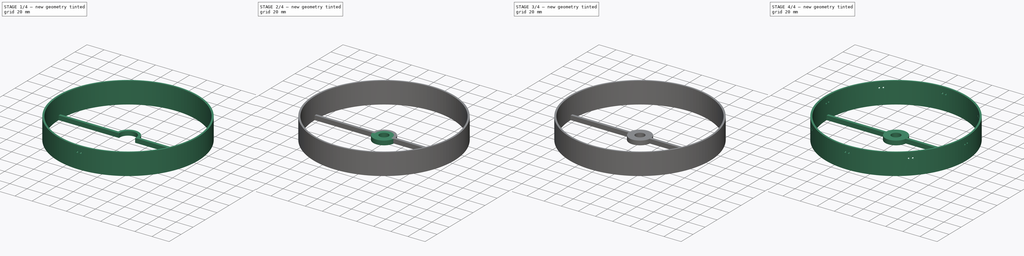
[diagram: build sequence overview — one tinted view per stage of 4, left to right]
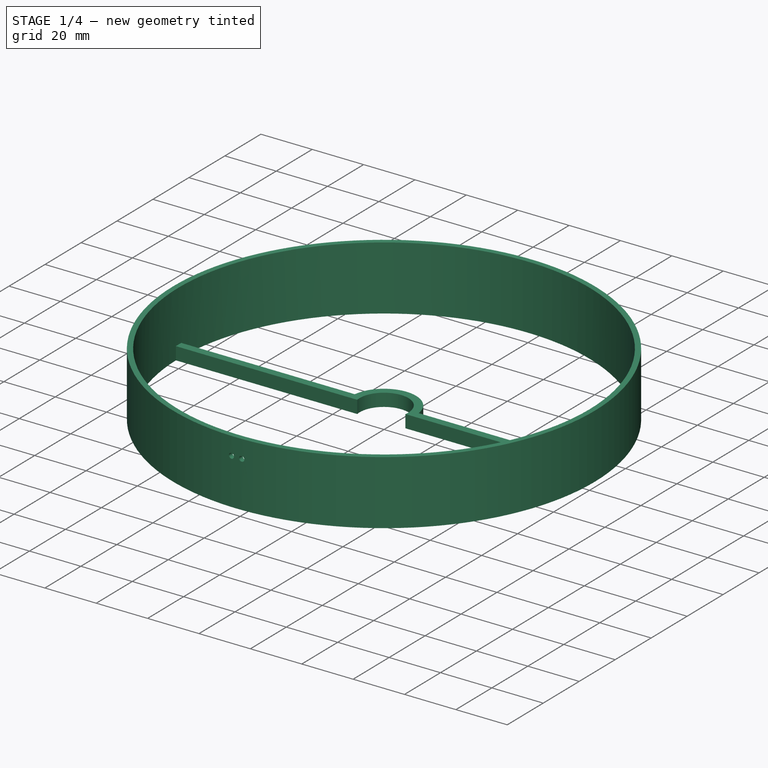
[diagram: stage 1 of 4 — iso view after this stage's code; geometry added in this stage tinted green]
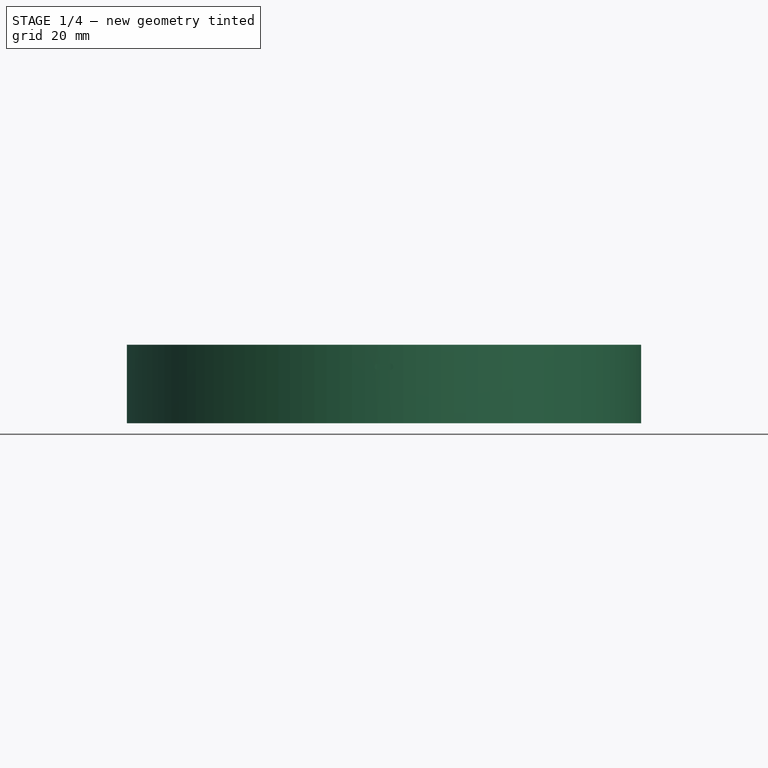
[diagram: stage 1 of 4 — front view after this stage's code; geometry added in this stage tinted green]
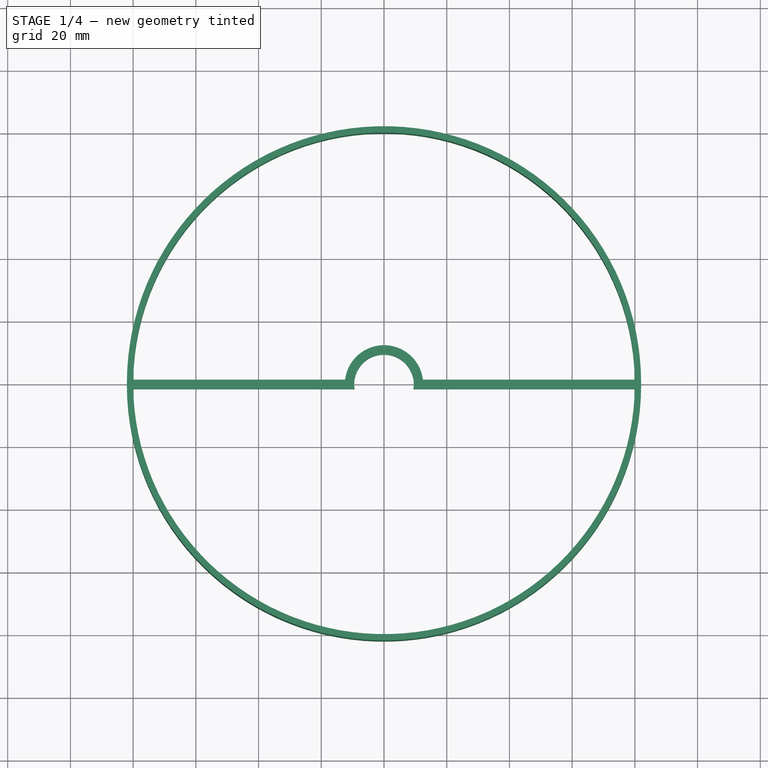
[diagram: stage 1 of 4 — top view after this stage's code; geometry added in this stage tinted green]
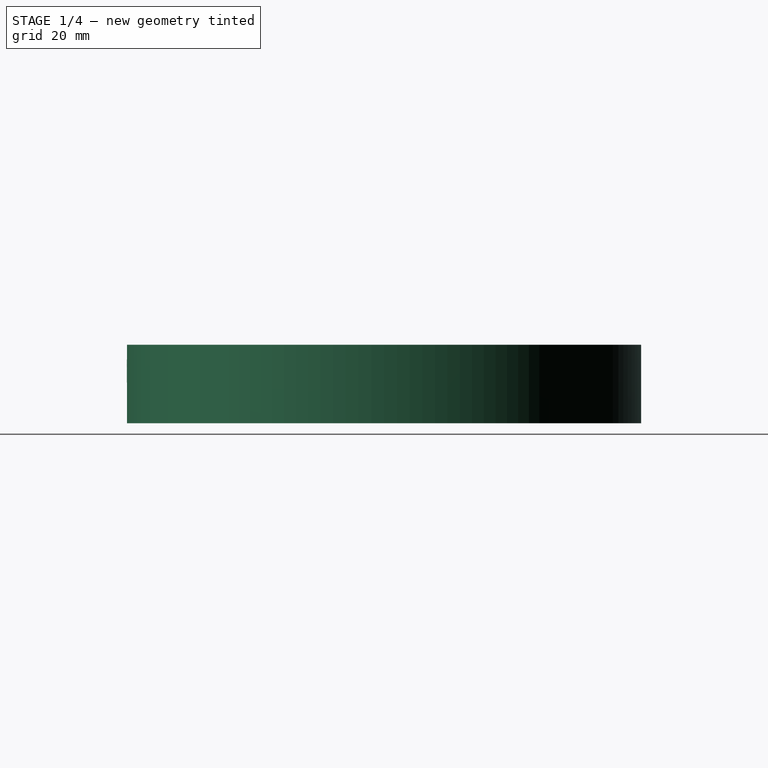
[diagram: stage 1 of 4 — right view after this stage's code; geometry added in this stage tinted green]
FCSTD DOCUMENT  (FreeCAD 0.19R22756 (Git))
Label: ikea-light-cover
License: All rights reserved
LicenseURL: http://en.wikipedia.org/wiki/All_rights_reserved
objects: Sketcher::SketchObject×10, PartDesign::Pad×7, PartDesign::Pocket×3, PartDesign::Body×3, PartDesign::Plane×2, PartDesign::PolarPattern×2
note: 37 computed .brp shape members not serialized (recipe doc carries the construction recipe); baked Part::Feature solids carry a one-line shape summary decoded from their .brp

FEATURE [PartDesign::Body] Body002  label="Middle"
  Group = -> [Sketch004,Pad003,Sketch003,Pad002,Sketch005,Pocket001]
  Origin = -> Origin002
  Tip = -> Pocket001
FEATURE [Sketcher::SketchObject] Sketch008
  MapMode = 5
  Support = -> [XY_Plane003]
  expr: Constraints[3] = Constraints[2] + 4mm
  sketch-geometry (2):
    g0: Circle CenterX=0 CenterY=0 CenterZ=0 NormalX=0 NormalY=0 NormalZ=1 AngleXU=0 Radius=82
    g1: Circle CenterX=0 CenterY=0 CenterZ=0 NormalX=0 NormalY=0 NormalZ=1 AngleXU=0 Radius=80
  constraints (4):
    c: Coincident(g0,g-1)
    c: Coincident(g1,g0)
    c: Diameter(g1) = 160
    c: Diameter(g0) = 164
FEATURE [PartDesign::Plane] DatumPlane001
  AttachmentOffset = pos=(0,0,82) rot=(0,0,1;0rad)
  Length = 182.105
  MapMode = 5
  Placement = pos=(0,-82,-1.82e-14) rot=(1,0,0;1.5708rad)
  ResizeMode = 0
  Support = -> [XZ_Plane003]
  Width = 68.1104
FEATURE [Sketcher::SketchObject] Sketch007
  MapMode = 5
  Placement = pos=(0,-82,-1.82e-14) rot=(1,0,0;1.5708rad)
  Support = -> [DatumPlane001]
  expr: Constraints[4] = -Constraints[3]
  sketch-geometry (2):
    g0: Circle CenterX=-2 CenterY=18 CenterZ=0 NormalX=0 NormalY=0 NormalZ=1 AngleXU=0 Radius=1
    g1: Circle CenterX=2 CenterY=18 CenterZ=0 NormalX=0 NormalY=0 NormalZ=1 AngleXU=0 Radius=1
  constraints (6):
    c: Diameter(g0) = 2
    c: Diameter(g1) = 2
    c: Horizontal(g0,g1)
    c: DistanceX(g-2,g0) = -2
    c: DistanceX(g-2,g1) = 2
    c: DistanceY(g-1,g0) = 18
FEATURE [PartDesign::Pad] Pad004
  Direction = (1,1,1)
  Length = 25
  Length2 = 100
  Profile = -> Sketch008
  Type = 0
FEATURE [Sketcher::SketchObject] Sketch006
  ExternalGeometry = -> [Pad004]
  MapMode = 5
  Placement = pos=(0,0,0) rot=(1,0,0;3.14159rad)
  Support = -> [Pad004]
  expr: Constraints[21] = Constraints[19] / 2
  expr: Constraints[20] = Constraints[1] - 6mm
  sketch-geometry (8):
    g0: ArcOfCircle CenterX=0 CenterY=0 CenterZ=0 NormalX=0 NormalY=0 NormalZ=1 AngleXU=0 Radius=12.5 StartAngle=3.26188 EndAngle=6.1629
    g1: LineSegment StartX=-12.4097 StartY=-1.5 StartZ=0 EndX=-79.9859 EndY=-1.5 EndZ=0
    g2: LineSegment StartX=12.4097 StartY=-1.5 StartZ=0 EndX=79.9859 EndY=-1.5 EndZ=0
    g3: ArcOfCircle CenterX=0 CenterY=0 CenterZ=0 NormalX=0 NormalY=0 NormalZ=1 AngleXU=0 Radius=9.5 StartAngle=2.98303 EndAngle=6.44174
    g4: LineSegment StartX=-79.9859 StartY=1.5 StartZ=0 EndX=-9.38083 EndY=1.5 EndZ=0
    g5: LineSegment StartX=9.38083 StartY=1.5 StartZ=0 EndX=79.9859 EndY=1.5 EndZ=0
    g6: ArcOfCircle CenterX=-1.98868e-11 CenterY=-6.31e-14 CenterZ=0 NormalX=0 NormalY=0 NormalZ=1 AngleXU=0 Radius=80 StartAngle=3.12284 EndAngle=3.16034
    g7: ArcOfCircle CenterX=2.82826e-11 CenterY=7.8e-15 CenterZ=0 NormalX=0 NormalY=0 NormalZ=1 AngleXU=0 Radius=80 StartAngle=6.26443 EndAngle=6.30194
  constraints (26):
    c: Coincident(g0,g-1)
    c: Diameter(g0) = 25
    c: Horizontal(g0,g0)
    c: Coincident(g1,g0)
    c: PointOnObject(g1,g-3)
    c: Horizontal(g1)
    c: Coincident(g2,g0)
    c: PointOnObject(g2,g-3)
    c: Horizontal(g2)
    c: Coincident(g3,g0)
    c: Horizontal(g3,g3)
    c: Coincident(g4,g3)
    c: Horizontal(g4)
    c: Coincident(g5,g3)
    c: PointOnObject(g5,g-3)
    c: Horizontal(g5)
    c: PointOnObject(g4,g-3)
    c: Coincident(g6,g4)
    c: Coincident(g6,g1)
    c: DistanceY(g1,g4) = 3
    c: Diameter(g3) = 19
    c: DistanceY(g-1,g4) = 1.5
    c: Tangent(g6,g-3)
    c: Coincident(g7,g5)
    c: Coincident(g7,g2)
    c: Tangent(g7,g-3)
FEATURE [PartDesign::Pad] Pad005
  BaseFeature = -> Pad004
  Direction = (1,1,1)
  Length = 5
  Length2 = 100
  Profile = -> Sketch006
  Reversed = true
  Type = 0
FEATURE [PartDesign::Pocket] Pocket002
  BaseFeature = -> Pad005
  Length = 5
  Length2 = 100
  Profile = -> Sketch007
  Type = 0
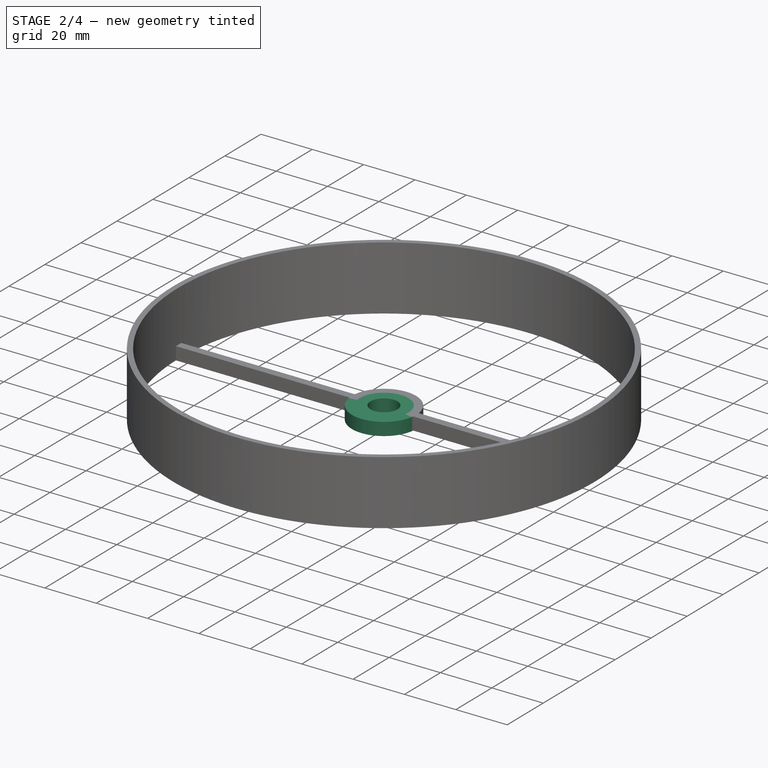
[diagram: stage 2 of 4 — iso view after this stage's code; geometry added in this stage tinted green]
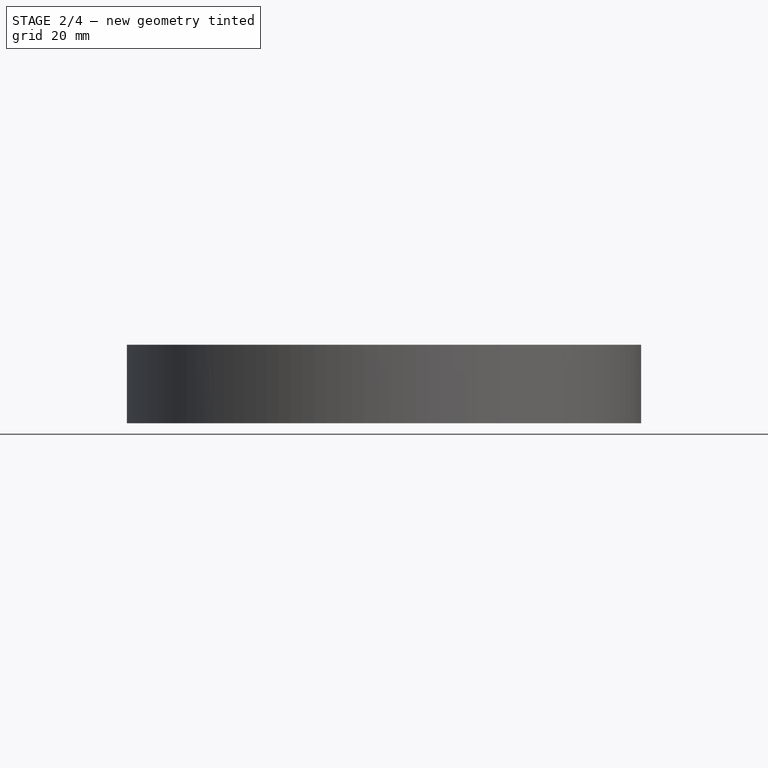
[diagram: stage 2 of 4 — front view after this stage's code; geometry added in this stage tinted green]
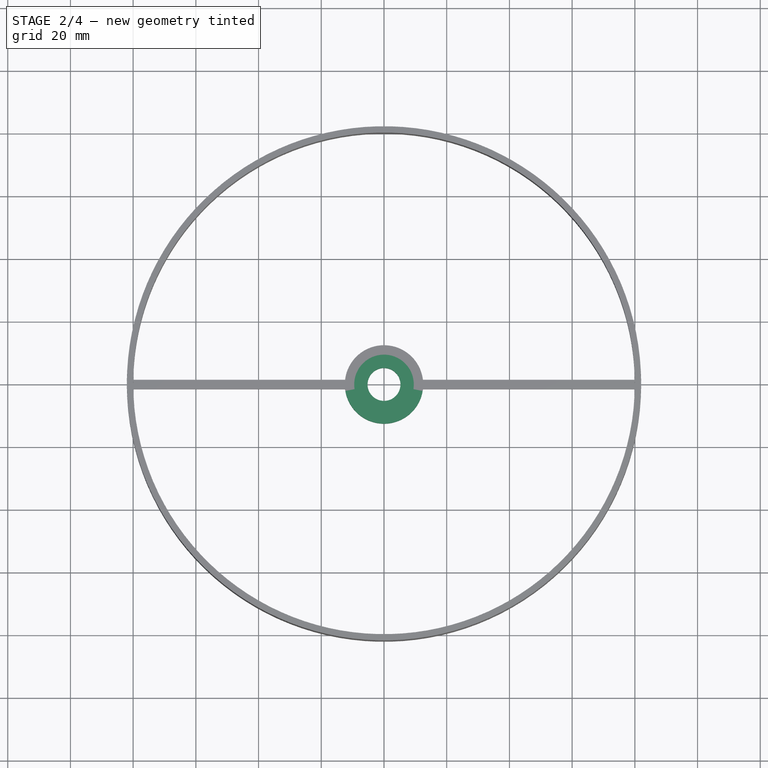
[diagram: stage 2 of 4 — top view after this stage's code; geometry added in this stage tinted green]
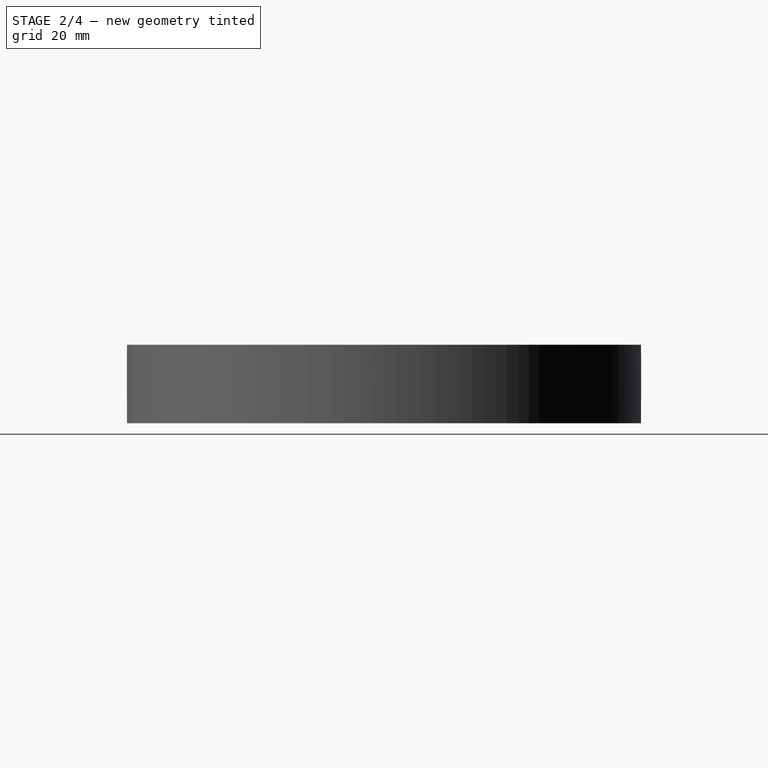
[diagram: stage 2 of 4 — right view after this stage's code; geometry added in this stage tinted green]
FEATURE [PartDesign::Body] Body001  label="Bottom"
  Group = -> [Sketch,Pad,Sketch001,Pad001,DatumPlane,Sketch002,Pocket,PolarPattern]
  Origin = -> Origin001
  Tip = -> PolarPattern
FEATURE [Sketcher::SketchObject] Sketch004
  MapMode = 5
  Support = -> [XY_Plane002]
  expr: Constraints[3] = Constraints[2] + 4mm
  sketch-geometry (2):
    g0: Circle CenterX=0 CenterY=0 CenterZ=0 NormalX=0 NormalY=0 NormalZ=1 AngleXU=0 Radius=82
    g1: Circle CenterX=0 CenterY=0 CenterZ=0 NormalX=0 NormalY=0 NormalZ=1 AngleXU=0 Radius=80
  constraints (4):
    c: Coincident(g0,g-1)
    c: Coincident(g1,g0)
    c: Diameter(g1) = 160
    c: Diameter(g0) = 164
FEATURE [PartDesign::Pad] Pad003
  Direction = (1,1,1)
  Length = 25
  Length2 = 100
  Profile = -> Sketch004
  Type = 0
FEATURE [PartDesign::PolarPattern] PolarPattern001
  Angle = 360
  Axis = -> Z_Axis003
  BaseFeature = -> Pocket002
  Occurrences = 8
  Originals = -> [Pocket002]
FEATURE [Sketcher::SketchObject] Sketch009
  ExternalGeometry = -> [PolarPattern001]
  MapMode = 5
  Placement = pos=(0,0,5) rot=(0,0,1;0rad)
  Support = -> [PolarPattern001]
  sketch-geometry (2):
    g0: Circle CenterX=0 CenterY=0 CenterZ=0 NormalX=0 NormalY=0 NormalZ=1 AngleXU=0 Radius=5.25
    g1: Circle CenterX=0 CenterY=0 CenterZ=0 NormalX=0 NormalY=0 NormalZ=1 AngleXU=0 Radius=12.5
  constraints (4):
    c: Coincident(g0,g-1)
    c: Diameter(g0) = 10.5
    c: Coincident(g1,g0)
    c: PointOnObject(g-5,g1)
FEATURE [PartDesign::Pad] Pad006
  BaseFeature = -> PolarPattern001
  Direction = (1,1,1)
  Length = 10
  Length2 = 100
  Profile = -> Sketch009
  Reversed = true
  Type = 3
  UpToFace = -> PolarPattern001 [Face21]
FEATURE [PartDesign::Body] Body003  label="Top"
  Group = -> [Sketch008,Pad004,Sketch006,Pad005,DatumPlane001,Sketch007,Pocket002,PolarPattern001,Sketch009,Pad006]
  Origin = -> Origin003
  Tip = -> Pad006
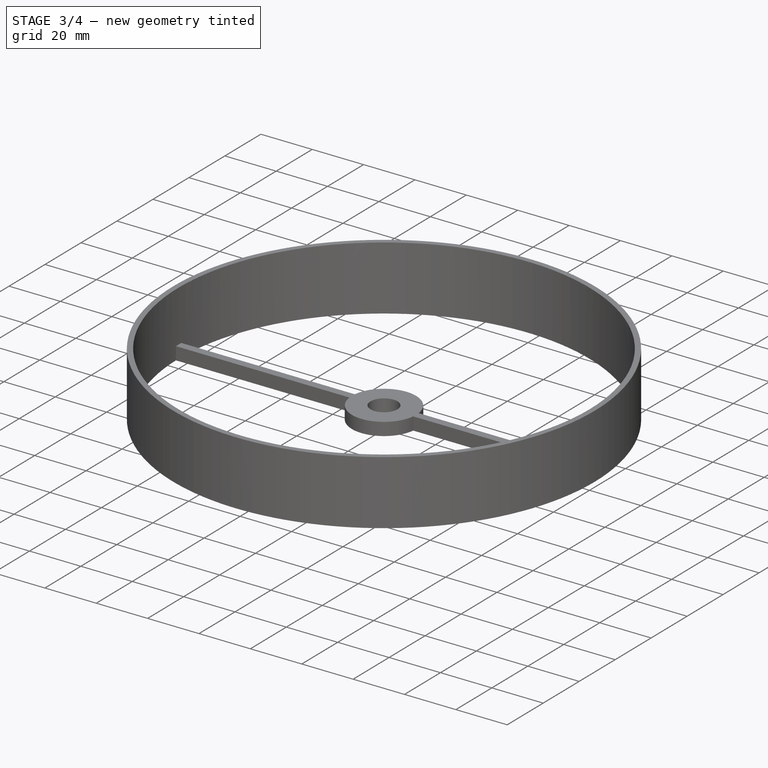
[diagram: stage 3 of 4 — iso view after this stage's code; geometry added in this stage tinted green]
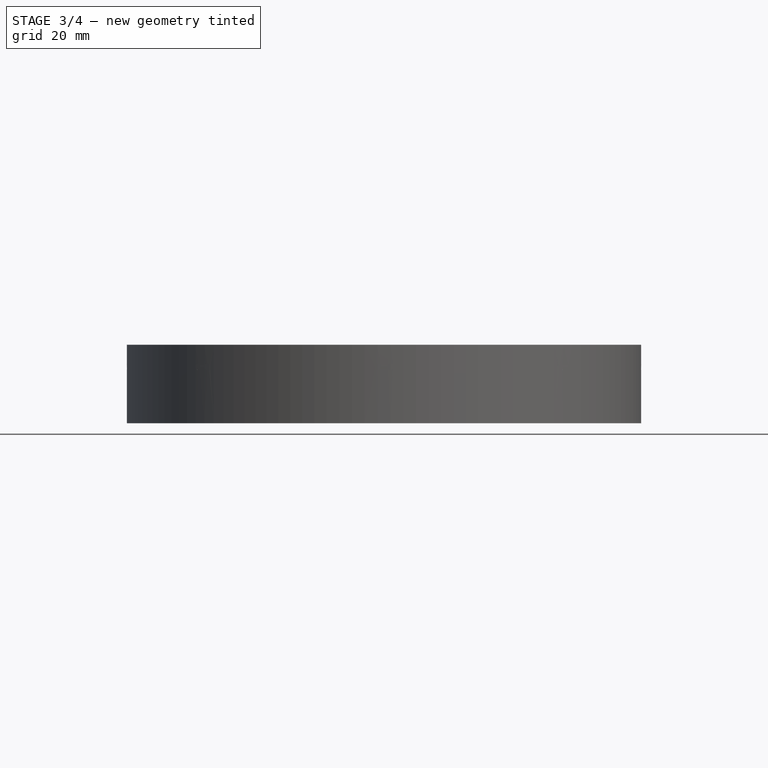
[diagram: stage 3 of 4 — front view after this stage's code; geometry added in this stage tinted green]
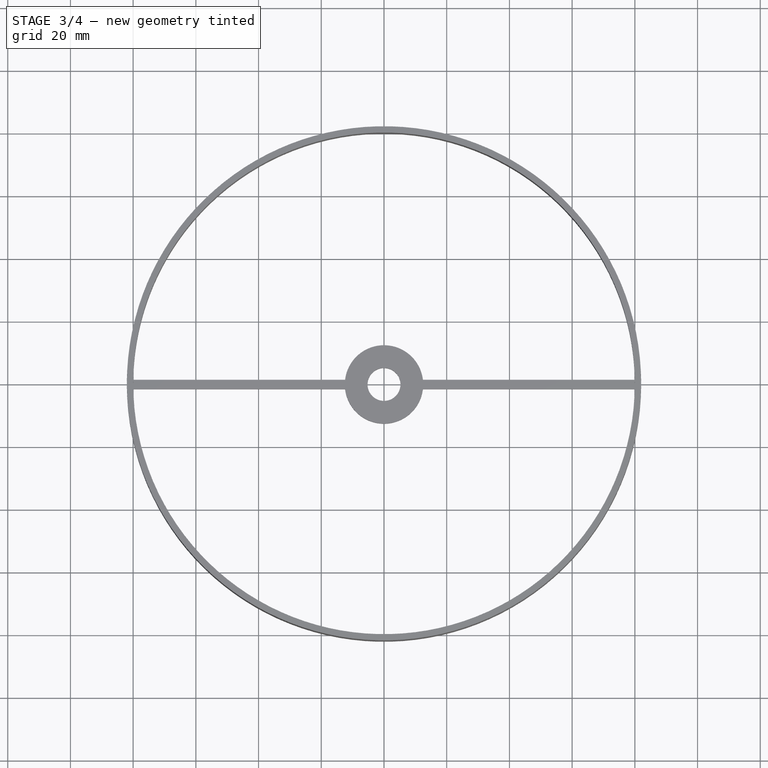
[diagram: stage 3 of 4 — top view after this stage's code; geometry added in this stage tinted green]
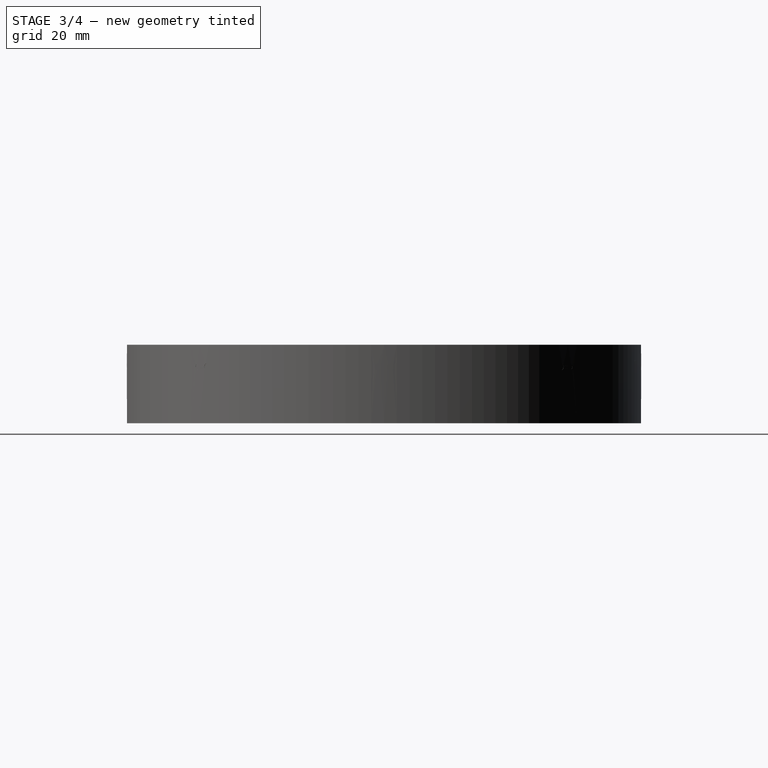
[diagram: stage 3 of 4 — right view after this stage's code; geometry added in this stage tinted green]
FEATURE [Sketcher::SketchObject] Sketch
  MapMode = 5
  Support = -> [XY_Plane001]
  expr: Constraints[3] = Constraints[2] + 4mm
  sketch-geometry (2):
    g0: Circle CenterX=0 CenterY=0 CenterZ=0 NormalX=0 NormalY=0 NormalZ=1 AngleXU=0 Radius=82
    g1: Circle CenterX=0 CenterY=0 CenterZ=0 NormalX=0 NormalY=0 NormalZ=1 AngleXU=0 Radius=80
  constraints (4):
    c: Coincident(g0,g-1)
    c: Coincident(g1,g0)
    c: Diameter(g1) = 160
    c: Diameter(g0) = 164
FEATURE [PartDesign::Pad] Pad
  Direction = (1,1,1)
  Length = 25
  Length2 = 100
  Profile = -> Sketch
  Type = 0
FEATURE [Sketcher::SketchObject] Sketch003
  ExternalGeometry = -> [Pad003]
  MapMode = 5
  Placement = pos=(0,0,0) rot=(1,0,0;3.14159rad)
  Support = -> [Pad003]
  expr: Constraints[21] = Constraints[19] / 2
  expr: Constraints[20] = Constraints[1] - 6mm
  sketch-geometry (8):
    g0: ArcOfCircle CenterX=0 CenterY=0 CenterZ=0 NormalX=0 NormalY=0 NormalZ=1 AngleXU=0 Radius=12.5 StartAngle=3.26188 EndAngle=6.1629
    g1: LineSegment StartX=-12.4097 StartY=-1.5 StartZ=0 EndX=-79.9859 EndY=-1.5 EndZ=0
    g2: LineSegment StartX=12.4097 StartY=-1.5 StartZ=0 EndX=79.9859 EndY=-1.5 EndZ=0
    g3: ArcOfCircle CenterX=0 CenterY=0 CenterZ=0 NormalX=0 NormalY=0 NormalZ=1 AngleXU=0 Radius=9.5 StartAngle=2.98303 EndAngle=6.44174
    g4: LineSegment StartX=-79.9859 StartY=1.5 StartZ=0 EndX=-9.38083 EndY=1.5 EndZ=0
    g5: LineSegment StartX=9.38083 StartY=1.5 StartZ=0 EndX=79.9859 EndY=1.5 EndZ=0
    g6: ArcOfCircle CenterX=-1.98868e-11 CenterY=-6.31e-14 CenterZ=0 NormalX=0 NormalY=0 NormalZ=1 AngleXU=0 Radius=80 StartAngle=3.12284 EndAngle=3.16034
    g7: ArcOfCircle CenterX=2.82826e-11 CenterY=7.8e-15 CenterZ=0 NormalX=0 NormalY=0 NormalZ=1 AngleXU=0 Radius=80 StartAngle=6.26443 EndAngle=6.30194
  constraints (26):
    c: Coincident(g0,g-1)
    c: Diameter(g0) = 25
    c: Horizontal(g0,g0)
    c: Coincident(g1,g0)
    c: PointOnObject(g1,g-3)
    c: Horizontal(g1)
    c: Coincident(g2,g0)
    c: PointOnObject(g2,g-3)
    c: Horizontal(g2)
    c: Coincident(g3,g0)
    c: Horizontal(g3,g3)
    c: Coincident(g4,g3)
    c: Horizontal(g4)
    c: Coincident(g5,g3)
    c: PointOnObject(g5,g-3)
    c: Horizontal(g5)
    c: PointOnObject(g4,g-3)
    c: Coincident(g6,g4)
    c: Coincident(g6,g1)
    c: DistanceY(g1,g4) = 3
    c: Diameter(g3) = 19
    c: DistanceY(g-1,g4) = 1.5
    c: Tangent(g6,g-3)
    c: Coincident(g7,g5)
    c: Coincident(g7,g2)
    c: Tangent(g7,g-3)
FEATURE [PartDesign::Pad] Pad002
  BaseFeature = -> Pad003
  Direction = (1,1,1)
  Length = 3
  Length2 = 100
  Profile = -> Sketch003
  Reversed = true
  Type = 0
FEATURE [Sketcher::SketchObject] Sketch005
  ExternalGeometry = -> [Pad002]
  MapMode = 5
  Placement = pos=(0,0,25) rot=(0,0,1;0rad)
  Support = -> [Pad002]
  sketch-geometry (2):
    g0: Circle CenterX=0 CenterY=0 CenterZ=0 NormalX=0 NormalY=0 NormalZ=1 AngleXU=0 Radius=80
    g1: Circle CenterX=0 CenterY=0 CenterZ=0 NormalX=0 NormalY=0 NormalZ=1 AngleXU=0 Radius=82
  constraints (4):
    c: Coincident(g0,g-1)
    c: Coincident(g1,g0)
    c: Diameter(g0) = 160
    c: Diameter(g1) = 164
FEATURE [PartDesign::Pocket] Pocket001
  BaseFeature = -> Pad002
  Length = 0
  Length2 = 100
  Profile = -> Sketch005
  Type = 3
  UpToFace = -> Pad002 [Face2]
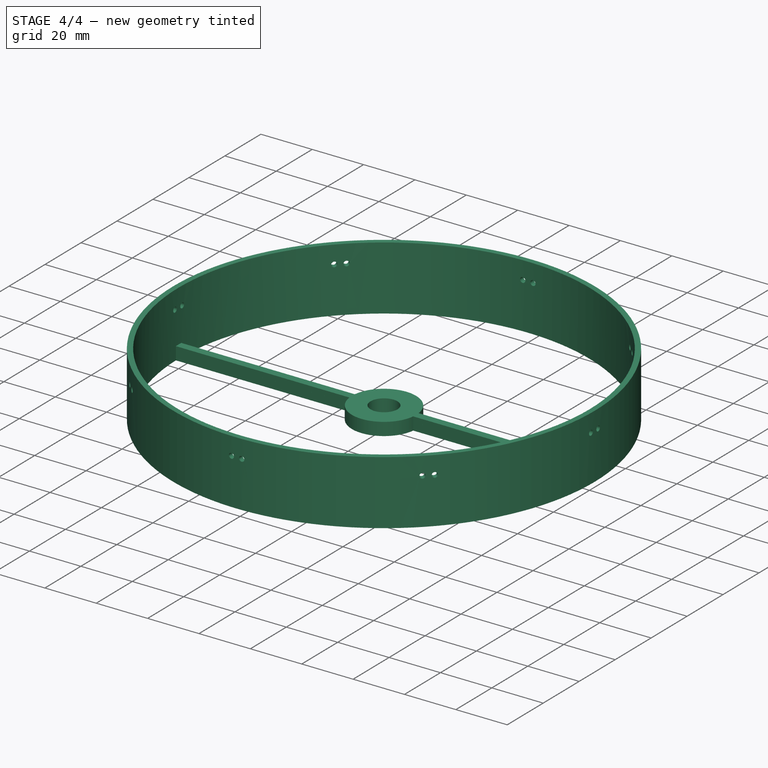
[diagram: stage 4 of 4 — iso view after this stage's code; geometry added in this stage tinted green]
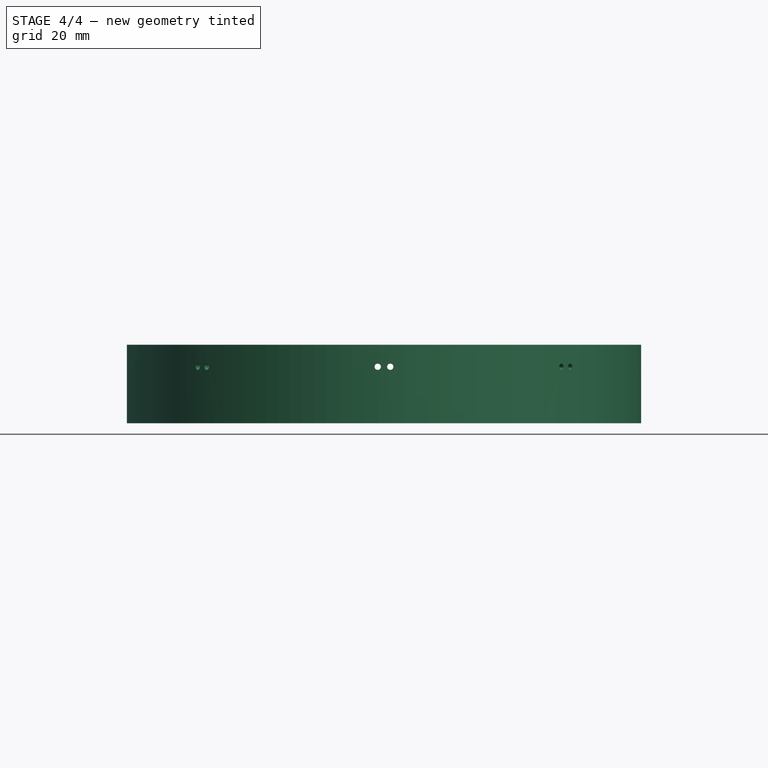
[diagram: stage 4 of 4 — front view after this stage's code; geometry added in this stage tinted green]
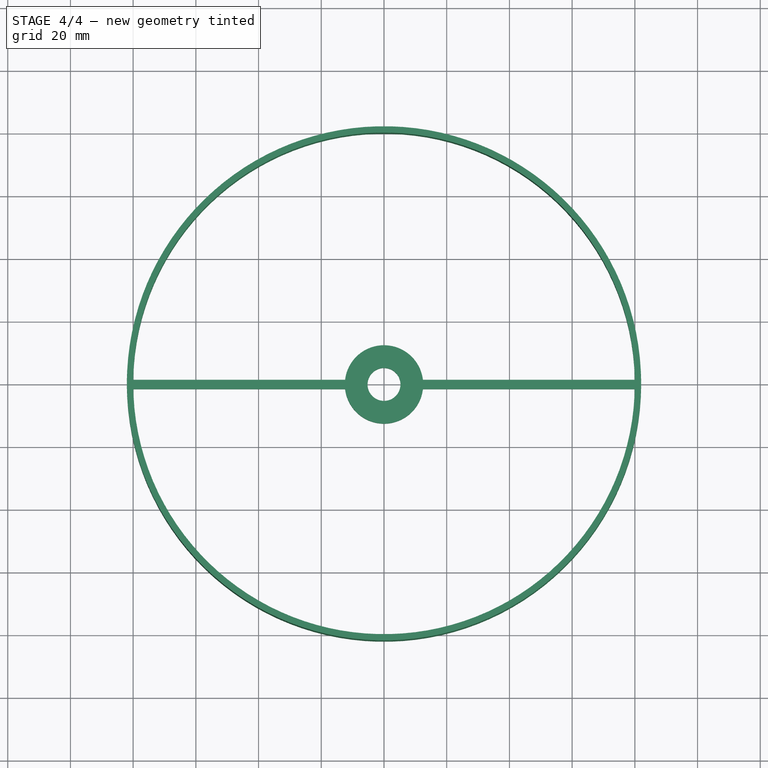
[diagram: stage 4 of 4 — top view after this stage's code; geometry added in this stage tinted green]
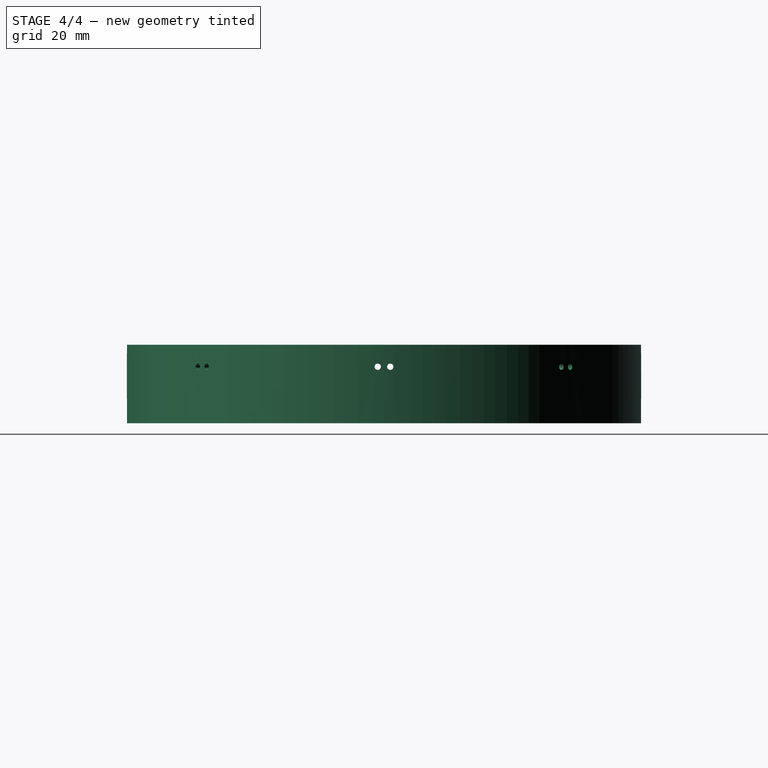
[diagram: stage 4 of 4 — right view after this stage's code; geometry added in this stage tinted green]
FEATURE [Sketcher::SketchObject] Sketch001
  ExternalGeometry = -> [Pad]
  MapMode = 5
  Placement = pos=(0,0,0) rot=(1,0,0;3.14159rad)
  Support = -> [Pad]
  expr: Constraints[20] = Constraints[1] - 6mm
  expr: Constraints[21] = Constraints[19] / 2
  sketch-geometry (8):
    g0: ArcOfCircle CenterX=0 CenterY=0 CenterZ=0 NormalX=0 NormalY=0 NormalZ=1 AngleXU=0 Radius=12.5 StartAngle=3.26188 EndAngle=6.1629
    g1: LineSegment StartX=-12.4097 StartY=-1.5 StartZ=0 EndX=-79.9859 EndY=-1.5 EndZ=0
    g2: LineSegment StartX=12.4097 StartY=-1.5 StartZ=0 EndX=79.9859 EndY=-1.5 EndZ=0
    g3: ArcOfCircle CenterX=0 CenterY=0 CenterZ=0 NormalX=0 NormalY=0 NormalZ=1 AngleXU=0 Radius=9.5 StartAngle=2.98303 EndAngle=6.44174
    g4: LineSegment StartX=-79.9859 StartY=1.5 StartZ=0 EndX=-9.38083 EndY=1.5 EndZ=0
    g5: LineSegment StartX=9.38083 StartY=1.5 StartZ=0 EndX=79.9859 EndY=1.5 EndZ=0
    g6: ArcOfCircle CenterX=-1.98868e-11 CenterY=-6.31e-14 CenterZ=0 NormalX=0 NormalY=0 NormalZ=1 AngleXU=0 Radius=80 StartAngle=3.12284 EndAngle=3.16034
    g7: ArcOfCircle CenterX=2.82826e-11 CenterY=7.8e-15 CenterZ=0 NormalX=0 NormalY=0 NormalZ=1 AngleXU=0 Radius=80 StartAngle=6.26443 EndAngle=6.30194
  constraints (26):
    c: Coincident(g0,g-1)
    c: Diameter(g0) = 25
    c: Horizontal(g0,g0)
    c: Coincident(g1,g0)
    c: PointOnObject(g1,g-3)
    c: Horizontal(g1)
    c: Coincident(g2,g0)
    c: PointOnObject(g2,g-3)
    c: Horizontal(g2)
    c: Coincident(g3,g0)
    c: Horizontal(g3,g3)
    c: Coincident(g4,g3)
    c: Horizontal(g4)
    c: Coincident(g5,g3)
    c: PointOnObject(g5,g-3)
    c: Horizontal(g5)
    c: PointOnObject(g4,g-3)
    c: Coincident(g6,g4)
    c: Coincident(g6,g1)
    c: DistanceY(g1,g4) = 3
    c: Diameter(g3) = 19
    c: DistanceY(g-1,g4) = 1.5
    c: Tangent(g6,g-3)
    c: Coincident(g7,g5)
    c: Coincident(g7,g2)
    c: Tangent(g7,g-3)
FEATURE [PartDesign::Pad] Pad001
  BaseFeature = -> Pad
  Direction = (1,1,1)
  Length = 5
  Length2 = 100
  Profile = -> Sketch001
  Reversed = true
  Type = 0
FEATURE [PartDesign::Plane] DatumPlane
  AttachmentOffset = pos=(0,0,82) rot=(0,0,1;0rad)
  Length = 182.105
  MapMode = 5
  Placement = pos=(0,-82,-1.82e-14) rot=(1,0,0;1.5708rad)
  ResizeMode = 0
  Support = -> [XZ_Plane001]
  Width = 68.1104
FEATURE [Sketcher::SketchObject] Sketch002
  MapMode = 5
  Placement = pos=(0,-82,-1.82e-14) rot=(1,0,0;1.5708rad)
  Support = -> [DatumPlane]
  expr: Constraints[4] = -Constraints[3]
  sketch-geometry (2):
    g0: Circle CenterX=-2 CenterY=18 CenterZ=0 NormalX=0 NormalY=0 NormalZ=1 AngleXU=0 Radius=1
    g1: Circle CenterX=2 CenterY=18 CenterZ=0 NormalX=0 NormalY=0 NormalZ=1 AngleXU=0 Radius=1
  constraints (6):
    c: Diameter(g0) = 2
    c: Diameter(g1) = 2
    c: Horizontal(g0,g1)
    c: DistanceX(g-2,g0) = -2
    c: DistanceX(g-2,g1) = 2
    c: DistanceY(g-1,g0) = 18
FEATURE [PartDesign::Pocket] Pocket
  BaseFeature = -> Pad001
  Length = 5
  Length2 = 100
  Profile = -> Sketch002
  Type = 0
FEATURE [PartDesign::PolarPattern] PolarPattern
  Angle = 360
  Axis = -> Z_Axis001
  BaseFeature = -> Pocket
  Occurrences = 8
  Originals = -> [Pocket]
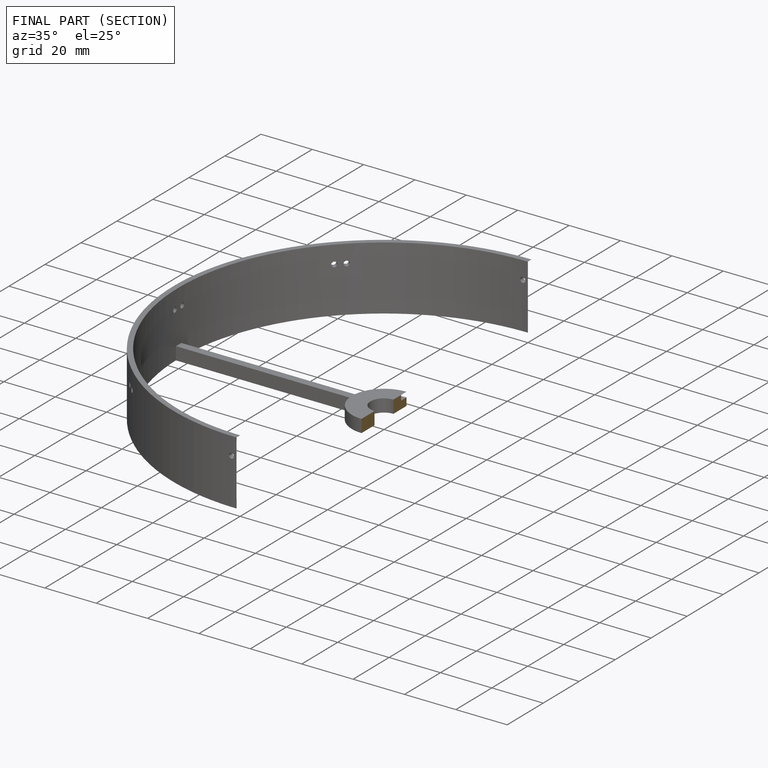
[diagram: finished part — half-section view (interior)]
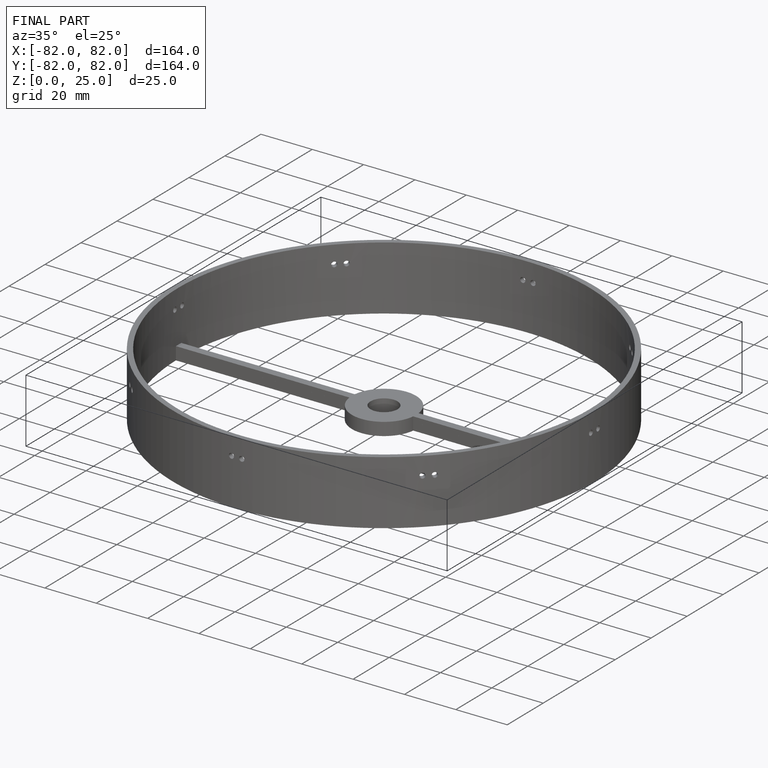
[diagram: finished part — iso view with bounding-box wireframe]
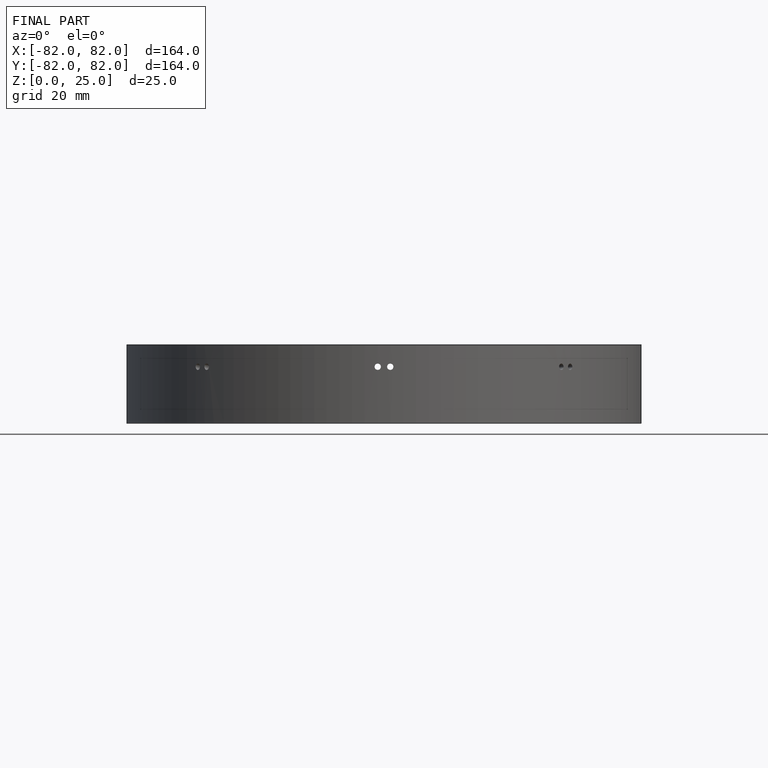
[diagram: finished part — front view with bounding-box wireframe]
